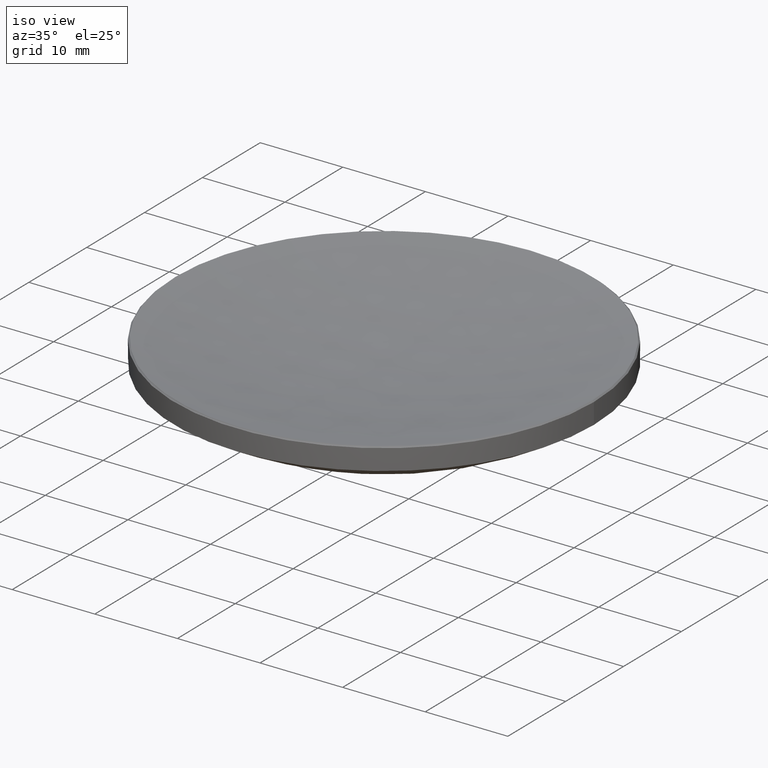
[diagram: clean part render]
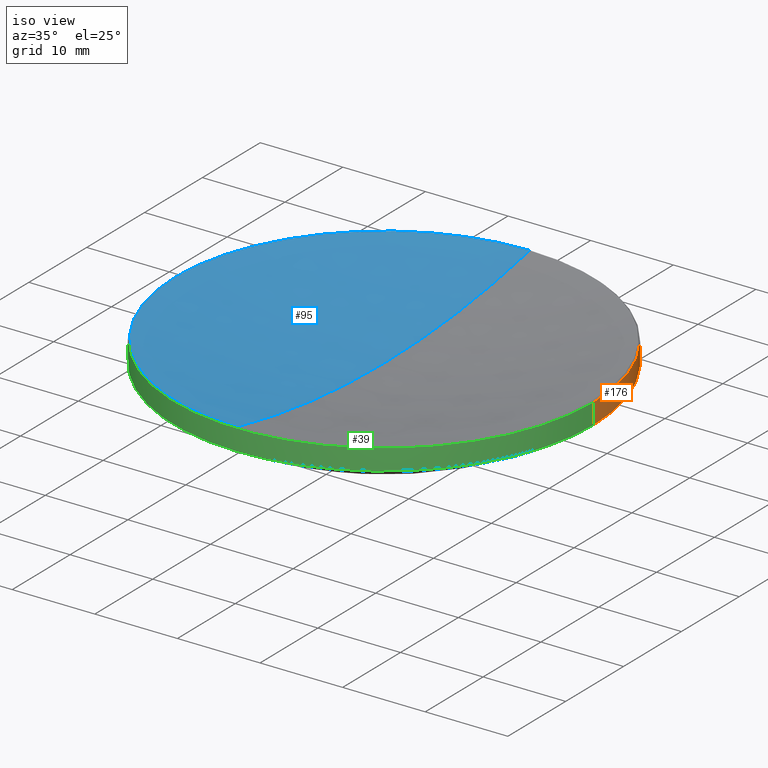
[diagram: same view with three faces highlighted in distinct colors, each labeled with its STEP entity id]
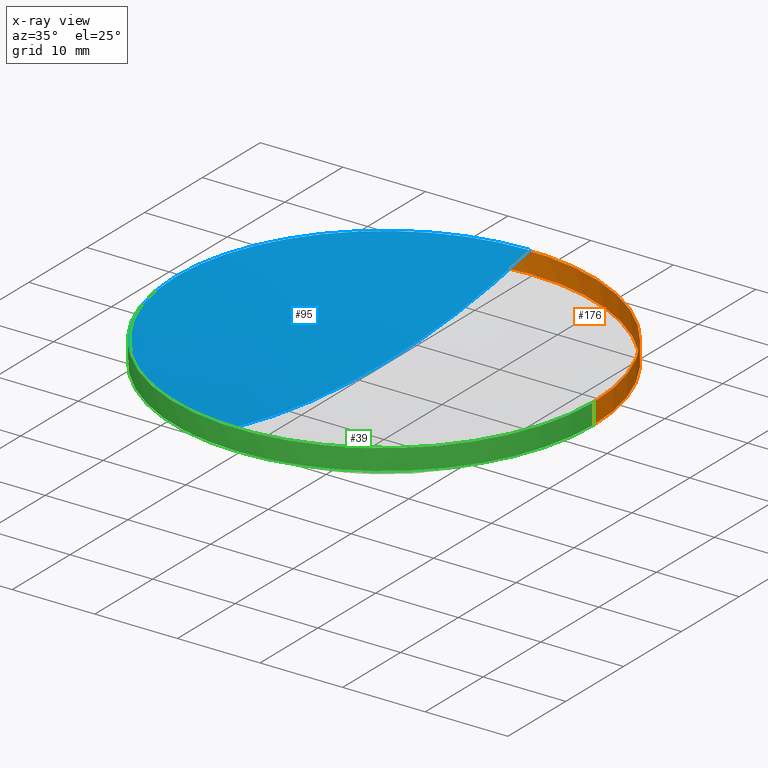
[diagram: x-ray of the same camera — body ghosted, the three highlighted faces saturated]
A machine part, iso view with three faces highlighted in distinct colors.
The next image is the same camera in x-ray (body ghosted, the three faces saturated) — at least one of them is partly hidden behind the body in this view.
Their STEP definitions:

[orange] entity #176 — the highlighted cylindrical surface (partial cylindrical patch) has radius 25.4 mm, axis along (-0, -0, -1).
#4 = VERTEX_POINT ( 'NONE', #271 ) ;
#7 = CARTESIAN_POINT ( 'NONE',  ( 0.000000000000000000, 0.000000000000000000, 15.49999999999997158 ) ) ;
#16 = EDGE_CURVE ( 'NONE', #70, #272, #153, .T. ) ;
#19 = CARTESIAN_POINT ( 'NONE',  ( 0.000000000000000000, 0.000000000000000000, 20.00000000000000000 ) ) ;
#21 = CARTESIAN_POINT ( 'NONE',  ( 25.39999999999999503, 3.110602869834276471E-15, 13.00000000000000000 ) ) ;
#24 = EDGE_CURVE ( 'NONE', #4, #162, #217, .T. ) ;
#31 = DIRECTION ( 'NONE',  ( -0.000000000000000000, -0.000000000000000000, 1.000000000000000000 ) ) ;
#34 = DIRECTION ( 'NONE',  ( 1.000000000000000000, 0.000000000000000000, 0.000000000000000000 ) ) ;
#44 = LINE ( 'NONE', #170, #230 ) ;
#50 = AXIS2_PLACEMENT_3D ( 'NONE', #7, #246, #209 ) ;
#54 = ORIENTED_EDGE ( 'NONE', *, *, #24, .T. ) ;
#56 = CARTESIAN_POINT ( 'NONE',  ( 0.000000000000000000, 0.000000000000000000, 13.00000000000000000 ) ) ;
#57 = ORIENTED_EDGE ( 'NONE', *, *, #191, .T. ) ;
#59 = DIRECTION ( 'NONE',  ( 1.000000000000000000, 0.000000000000000000, 0.000000000000000000 ) ) ;
#64 = DIRECTION ( 'NONE',  ( -1.000000000000000000, 0.000000000000000000, 0.000000000000000000 ) ) ;
#70 = VERTEX_POINT ( 'NONE', #215 ) ;
#75 = LINE ( 'NONE', #117, #115 ) ;
#84 = AXIS2_PLACEMENT_3D ( 'NONE', #56, #31, #34 ) ;
#94 = VERTEX_POINT ( 'NONE', #21 ) ;
#98 = ORIENTED_EDGE ( 'NONE', *, *, #175, .F. ) ;
#107 = DIRECTION ( 'NONE',  ( -0.000000000000000000, -0.000000000000000000, 1.000000000000000000 ) ) ;
#110 = AXIS2_PLACEMENT_3D ( 'NONE', #187, #107, #59 ) ;
#115 = VECTOR ( 'NONE', #231, 1000.000000000000000 ) ;
#117 = CARTESIAN_POINT ( 'NONE',  ( 25.39999999999999858, 3.110602869834276865E-15, 20.00000000000000000 ) ) ;
#125 = CARTESIAN_POINT ( 'NONE',  ( -25.39999999999999503, 0.000000000000000000, 13.00000000000000000 ) ) ;
#146 = EDGE_LOOP ( 'NONE', ( #54, #219, #57, #184, #98 ) ) ;
#152 = FACE_OUTER_BOUND ( 'NONE', #146, .T. ) ;
#153 = CIRCLE ( 'NONE', #84, 25.39999999999999503 ) ;
#162 = VERTEX_POINT ( 'NONE', #235 ) ;
#170 = CARTESIAN_POINT ( 'NONE',  ( -25.39999999999999858, 0.000000000000000000, 20.00000000000000000 ) ) ;
#175 = EDGE_CURVE ( 'NONE', #4, #272, #44, .T. ) ;
#176 = ADVANCED_FACE ( 'NONE', ( #152 ), #234, .T. ) ;
#184 = ORIENTED_EDGE ( 'NONE', *, *, #16, .T. ) ;
#187 = CARTESIAN_POINT ( 'NONE',  ( 0.000000000000000000, 0.000000000000000000, 13.00000000000000000 ) ) ;
#191 = EDGE_CURVE ( 'NONE', #94, #70, #277, .T. ) ;
#201 = AXIS2_PLACEMENT_3D ( 'NONE', #19, #279, #64 ) ;
#209 = DIRECTION ( 'NONE',  ( 1.000000000000000000, 0.000000000000000000, 0.000000000000000000 ) ) ;
#215 = CARTESIAN_POINT ( 'NONE',  ( 0.000000000000000000, 25.39999999999999858, 12.99999999999999822 ) ) ;
#217 = CIRCLE ( 'NONE', #50, 25.39999999999999858 ) ;
#219 = ORIENTED_EDGE ( 'NONE', *, *, #265, .T. ) ;
#230 = VECTOR ( 'NONE', #259, 1000.000000000000000 ) ;
#231 = DIRECTION ( 'NONE',  ( -0.000000000000000000, -0.000000000000000000, -1.000000000000000000 ) ) ;
#234 = CYLINDRICAL_SURFACE ( 'NONE', #201, 25.39999999999999858 ) ;
#235 = CARTESIAN_POINT ( 'NONE',  ( 25.39999999999999858, 3.110602869834276865E-15, 15.49999999999997158 ) ) ;
#246 = DIRECTION ( 'NONE',  ( 0.000000000000000000, 0.000000000000000000, -1.000000000000000000 ) ) ;
#259 = DIRECTION ( 'NONE',  ( -0.000000000000000000, -0.000000000000000000, -1.000000000000000000 ) ) ;
#265 = EDGE_CURVE ( 'NONE', #162, #94, #75, .T. ) ;
#271 = CARTESIAN_POINT ( 'NONE',  ( -25.39999999999999858, 0.000000000000000000, 15.49999999999997158 ) ) ;
#272 = VERTEX_POINT ( 'NONE', #125 ) ;
#277 = CIRCLE ( 'NONE', #110, 25.39999999999999503 ) ;
#279 = DIRECTION ( 'NONE',  ( -0.000000000000000000, -0.000000000000000000, -1.000000000000000000 ) ) ;

[blue] entity #95 — the highlighted spherical surface has radius 119.32 mm.
#8 = ORIENTED_EDGE ( 'NONE', *, *, #85, .T. ) ;
#10 = CIRCLE ( 'NONE', #205, 25.23567881563414517 ) ;
#23 = AXIS2_PLACEMENT_3D ( 'NONE', #197, #134, #281 ) ;
#33 = DIRECTION ( 'NONE',  ( -1.224646799147353207E-16, -1.000000000000000000, 0.000000000000000000 ) ) ;
#42 = EDGE_CURVE ( 'NONE', #160, #138, #260, .T. ) ;
#62 = FACE_OUTER_BOUND ( 'NONE', #229, .T. ) ;
#65 = AXIS2_PLACEMENT_3D ( 'NONE', #192, #81, #148 ) ;
#66 = CARTESIAN_POINT ( 'NONE',  ( 0.000000000000000000, 7.306242803713110362E-15, 12.96517229905352941 ) ) ;
#67 = AXIS2_PLACEMENT_3D ( 'NONE', #144, #227, #33 ) ;
#68 = EDGE_CURVE ( 'NONE', #222, #202, #179, .T. ) ;
#69 = DIRECTION ( 'NONE',  ( -0.000000000000000000, -0.000000000000000000, 1.000000000000000000 ) ) ;
#73 = ORIENTED_EDGE ( 'NONE', *, *, #137, .T. ) ;
#81 = DIRECTION ( 'NONE',  ( -1.000000000000000000, 0.000000000000000000, 0.000000000000000000 ) ) ;
#85 = EDGE_CURVE ( 'NONE', #202, #138, #10, .T. ) ;
#86 = CARTESIAN_POINT ( 'NONE',  ( 0.000000000000000000, 0.000000000000000000, 15.66432118436585164 ) ) ;
#88 = CARTESIAN_POINT ( 'NONE',  ( -3.090479328587706859E-15, -25.23567881563418425, 15.66432118436585164 ) ) ;
#91 = ORIENTED_EDGE ( 'NONE', *, *, #68, .T. ) ;
#95 = ADVANCED_FACE ( 'NONE', ( #62 ), #128, .F. ) ;
#128 = SPHERICAL_SURFACE ( 'NONE', #65, 119.3200000000000074 ) ;
#132 = DIRECTION ( 'NONE',  ( 1.000000000000000000, 0.000000000000000000, 0.000000000000000000 ) ) ;
#133 = DIRECTION ( 'NONE',  ( 1.000000000000000000, 0.000000000000000000, 0.000000000000000000 ) ) ;
#134 = DIRECTION ( 'NONE',  ( 1.000000000000000000, 0.000000000000000000, 0.000000000000000000 ) ) ;
#137 = EDGE_CURVE ( 'NONE', #160, #222, #196, .T. ) ;
#138 = VERTEX_POINT ( 'NONE', #88 ) ;
#144 = CARTESIAN_POINT ( 'NONE',  ( 0.000000000000000000, 0.000000000000000000, 132.2851722990535279 ) ) ;
#148 = DIRECTION ( 'NONE',  ( 0.000000000000000000, 1.000000000000000000, 0.000000000000000000 ) ) ;
#160 = VERTEX_POINT ( 'NONE', #66 ) ;
#172 = CARTESIAN_POINT ( 'NONE',  ( 0.000000000000000000, 0.000000000000000000, 15.66432118436585164 ) ) ;
#179 = CIRCLE ( 'NONE', #185, 25.23567881563414517 ) ;
#185 = AXIS2_PLACEMENT_3D ( 'NONE', #86, #239, #132 ) ;
#186 = CARTESIAN_POINT ( 'NONE',  ( -25.23567881563414872, 0.000000000000000000, 15.66432118436585164 ) ) ;
#192 = CARTESIAN_POINT ( 'NONE',  ( 0.000000000000000000, 0.000000000000000000, 132.2851722990535279 ) ) ;
#196 = CIRCLE ( 'NONE', #23, 119.3200000000000074 ) ;
#197 = CARTESIAN_POINT ( 'NONE',  ( 0.000000000000000000, 0.000000000000000000, 132.2851722990535279 ) ) ;
#202 = VERTEX_POINT ( 'NONE', #186 ) ;
#205 = AXIS2_PLACEMENT_3D ( 'NONE', #172, #69, #133 ) ;
#206 = CARTESIAN_POINT ( 'NONE',  ( 0.000000000000000000, 25.23567881563418425, 15.66432118436585164 ) ) ;
#222 = VERTEX_POINT ( 'NONE', #206 ) ;
#227 = DIRECTION ( 'NONE',  ( -1.000000000000000000, 1.224646799147353207E-16, 0.000000000000000000 ) ) ;
#229 = EDGE_LOOP ( 'NONE', ( #269, #73, #91, #8 ) ) ;
#239 = DIRECTION ( 'NONE',  ( -0.000000000000000000, -0.000000000000000000, 1.000000000000000000 ) ) ;
#260 = CIRCLE ( 'NONE', #67, 119.3200000000000074 ) ;
#269 = ORIENTED_EDGE ( 'NONE', *, *, #42, .F. ) ;
#281 = DIRECTION ( 'NONE',  ( 0.000000000000000000, 0.000000000000000000, -1.000000000000000000 ) ) ;

[green] entity #39 — the highlighted cylindrical surface (partial cylindrical patch) has radius 25.4 mm, axis along (-0, -0, -1).
#4 = VERTEX_POINT ( 'NONE', #271 ) ;
#14 = CIRCLE ( 'NONE', #282, 25.39999999999999858 ) ;
#21 = CARTESIAN_POINT ( 'NONE',  ( 25.39999999999999503, 3.110602869834276471E-15, 13.00000000000000000 ) ) ;
#22 = DIRECTION ( 'NONE',  ( 1.000000000000000000, 0.000000000000000000, 0.000000000000000000 ) ) ;
#29 = ORIENTED_EDGE ( 'NONE', *, *, #175, .T. ) ;
#39 = ADVANCED_FACE ( 'NONE', ( #108 ), #106, .T. ) ;
#40 = DIRECTION ( 'NONE',  ( 1.000000000000000000, 0.000000000000000000, 0.000000000000000000 ) ) ;
#44 = LINE ( 'NONE', #170, #230 ) ;
#49 = EDGE_CURVE ( 'NONE', #162, #4, #14, .T. ) ;
#60 = CARTESIAN_POINT ( 'NONE',  ( 0.000000000000000000, 0.000000000000000000, 13.00000000000000000 ) ) ;
#61 = DIRECTION ( 'NONE',  ( -0.000000000000000000, -0.000000000000000000, -1.000000000000000000 ) ) ;
#75 = LINE ( 'NONE', #117, #115 ) ;
#82 = CIRCLE ( 'NONE', #278, 25.39999999999999503 ) ;
#94 = VERTEX_POINT ( 'NONE', #21 ) ;
#100 = AXIS2_PLACEMENT_3D ( 'NONE', #60, #232, #40 ) ;
#104 = VERTEX_POINT ( 'NONE', #250 ) ;
#106 = CYLINDRICAL_SURFACE ( 'NONE', #199, 25.39999999999999858 ) ;
#108 = FACE_OUTER_BOUND ( 'NONE', #264, .T. ) ;
#113 = EDGE_CURVE ( 'NONE', #272, #104, #216, .T. ) ;
#114 = ORIENTED_EDGE ( 'NONE', *, *, #265, .F. ) ;
#115 = VECTOR ( 'NONE', #231, 1000.000000000000000 ) ;
#117 = CARTESIAN_POINT ( 'NONE',  ( 25.39999999999999858, 3.110602869834276865E-15, 20.00000000000000000 ) ) ;
#125 = CARTESIAN_POINT ( 'NONE',  ( -25.39999999999999503, 0.000000000000000000, 13.00000000000000000 ) ) ;
#136 = EDGE_CURVE ( 'NONE', #104, #94, #82, .T. ) ;
#150 = DIRECTION ( 'NONE',  ( -1.000000000000000000, 0.000000000000000000, 0.000000000000000000 ) ) ;
#154 = DIRECTION ( 'NONE',  ( 1.000000000000000000, 0.000000000000000000, 0.000000000000000000 ) ) ;
#155 = CARTESIAN_POINT ( 'NONE',  ( 0.000000000000000000, 0.000000000000000000, 15.49999999999997158 ) ) ;
#156 = CARTESIAN_POINT ( 'NONE',  ( 0.000000000000000000, 0.000000000000000000, 13.00000000000000000 ) ) ;
#162 = VERTEX_POINT ( 'NONE', #235 ) ;
#170 = CARTESIAN_POINT ( 'NONE',  ( -25.39999999999999858, 0.000000000000000000, 20.00000000000000000 ) ) ;
#175 = EDGE_CURVE ( 'NONE', #4, #272, #44, .T. ) ;
#180 = ORIENTED_EDGE ( 'NONE', *, *, #136, .T. ) ;
#194 = DIRECTION ( 'NONE',  ( 0.000000000000000000, 0.000000000000000000, -1.000000000000000000 ) ) ;
#199 = AXIS2_PLACEMENT_3D ( 'NONE', #253, #61, #150 ) ;
#216 = CIRCLE ( 'NONE', #100, 25.39999999999999503 ) ;
#218 = ORIENTED_EDGE ( 'NONE', *, *, #113, .T. ) ;
#230 = VECTOR ( 'NONE', #259, 1000.000000000000000 ) ;
#231 = DIRECTION ( 'NONE',  ( -0.000000000000000000, -0.000000000000000000, -1.000000000000000000 ) ) ;
#232 = DIRECTION ( 'NONE',  ( -0.000000000000000000, -0.000000000000000000, 1.000000000000000000 ) ) ;
#235 = CARTESIAN_POINT ( 'NONE',  ( 25.39999999999999858, 3.110602869834276865E-15, 15.49999999999997158 ) ) ;
#241 = DIRECTION ( 'NONE',  ( -0.000000000000000000, -0.000000000000000000, 1.000000000000000000 ) ) ;
#248 = ORIENTED_EDGE ( 'NONE', *, *, #49, .T. ) ;
#250 = CARTESIAN_POINT ( 'NONE',  ( -3.110602869834276865E-15, -25.39999999999999858, 12.99999999999999822 ) ) ;
#253 = CARTESIAN_POINT ( 'NONE',  ( 0.000000000000000000, 0.000000000000000000, 20.00000000000000000 ) ) ;
#259 = DIRECTION ( 'NONE',  ( -0.000000000000000000, -0.000000000000000000, -1.000000000000000000 ) ) ;
#264 = EDGE_LOOP ( 'NONE', ( #114, #248, #29, #218, #180 ) ) ;
#265 = EDGE_CURVE ( 'NONE', #162, #94, #75, .T. ) ;
#271 = CARTESIAN_POINT ( 'NONE',  ( -25.39999999999999858, 0.000000000000000000, 15.49999999999997158 ) ) ;
#272 = VERTEX_POINT ( 'NONE', #125 ) ;
#278 = AXIS2_PLACEMENT_3D ( 'NONE', #156, #241, #22 ) ;
#282 = AXIS2_PLACEMENT_3D ( 'NONE', #155, #194, #154 ) ;